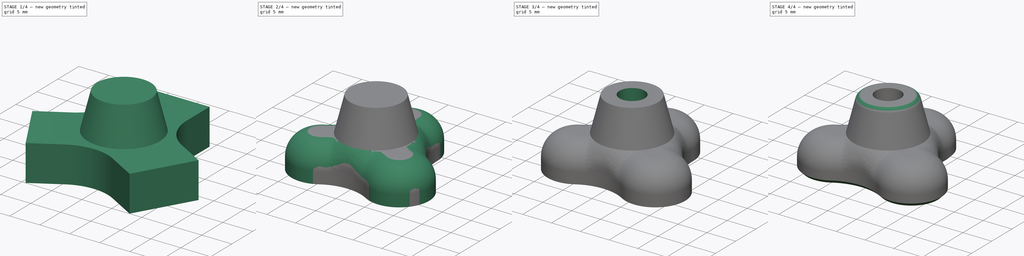
[diagram: build sequence overview — one tinted view per stage of 4, left to right]
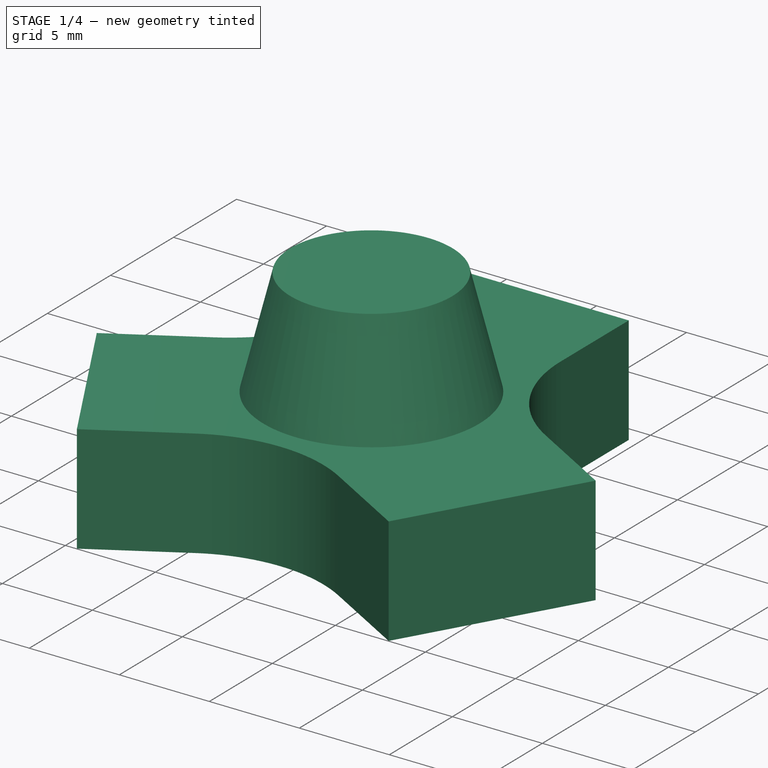
[diagram: stage 1 of 4 — iso view after this stage's code; geometry added in this stage tinted green]
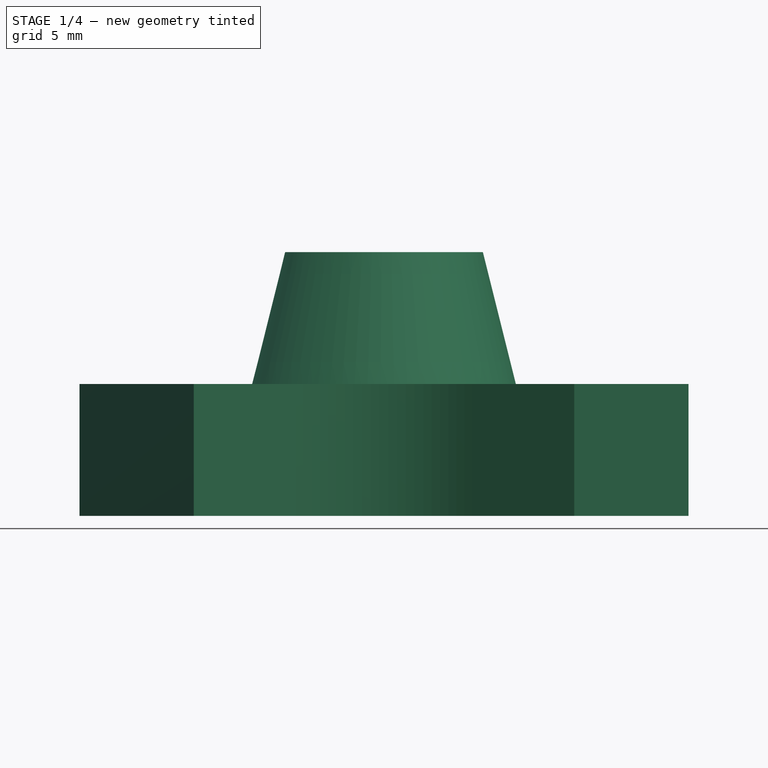
[diagram: stage 1 of 4 — front view after this stage's code; geometry added in this stage tinted green]
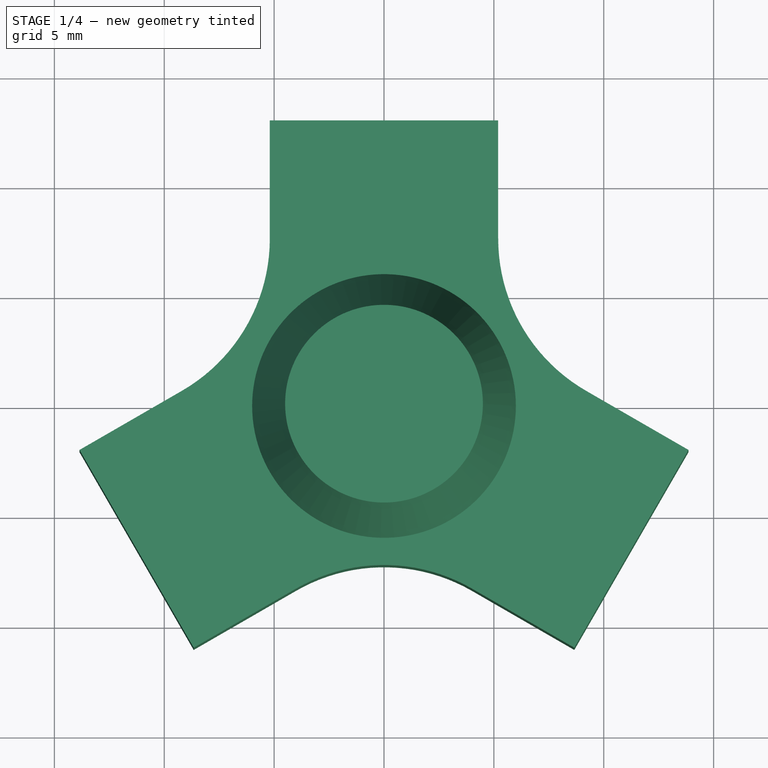
[diagram: stage 1 of 4 — top view after this stage's code; geometry added in this stage tinted green]
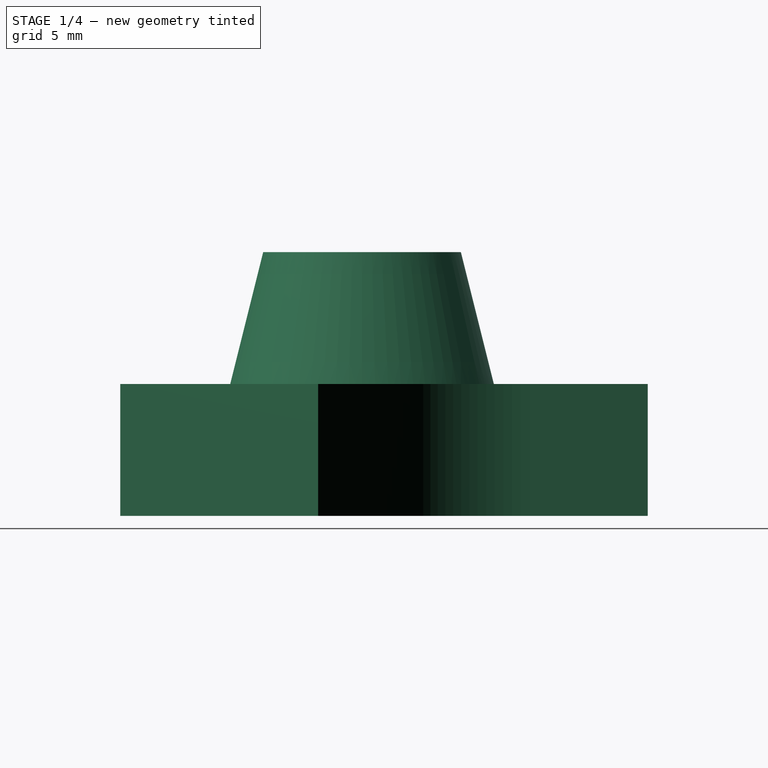
[diagram: stage 1 of 4 — right view after this stage's code; geometry added in this stage tinted green]
FCSTD DOCUMENT  (FreeCAD 0.15R4671 (Git))
Label: Verschraubungsknauf v2
License: All rights reserved
LicenseURL: http://de.wikipedia.org/wiki/Alle_Rechte_vorbehalten
objects: Sketcher::SketchObject×5, PartDesign::Fillet×4, PartDesign::Pad×2, PartDesign::Pocket×2, PartDesign::Chamfer×2, PartDesign::Revolution×1, Part::MultiFuse×1
note: 22 computed .brp shape members not serialized (recipe doc carries the construction recipe); baked Part::Feature solids carry a one-line shape summary decoded from their .brp

FEATURE [Sketcher::SketchObject] Sketch
  sketch-geometry (17):
    g0: LineSegment StartX=-5.19615 StartY=3 StartZ=0 EndX=-5.19615 EndY=13 EndZ=0
    g1: LineSegment StartX=-5.19615 StartY=13 StartZ=0 EndX=5.19615 EndY=13 EndZ=0
    g2: LineSegment StartX=5.19615 StartY=13 StartZ=0 EndX=5.19615 EndY=3 EndZ=0
    g3: LineSegment StartX=5.19615 StartY=3 StartZ=0 EndX=13.8564 EndY=-2 EndZ=0
    g4: LineSegment StartX=13.8564 StartY=-2 StartZ=0 EndX=8.66025 EndY=-11 EndZ=0
    g5: LineSegment StartX=8.66025 StartY=-11 StartZ=0 EndX=0 EndY=-6 EndZ=0
    g6: LineSegment StartX=0 StartY=-6 StartZ=0 EndX=-8.66025 EndY=-11 EndZ=0
    g7: LineSegment StartX=-8.66025 StartY=-11 StartZ=0 EndX=-13.8564 EndY=-2 EndZ=0
    g8: LineSegment StartX=-13.8564 StartY=-2 StartZ=0 EndX=-5.19615 EndY=3 EndZ=0
    g9: Circle [constr] CenterX=0 CenterY=0 CenterZ=0 NormalX=0 NormalY=0 NormalZ=1 Radius=6
    g10: LineSegment [constr] StartX=4.07032 StartY=0 StartZ=0 EndX=2.03516 EndY=3.525 EndZ=0
    g11: LineSegment [constr] StartX=2.03516 StartY=3.525 StartZ=0 EndX=-2.03516 EndY=3.525 EndZ=0
    g12: LineSegment [constr] StartX=-2.03516 StartY=3.525 StartZ=0 EndX=-4.07032 EndY=0 EndZ=0
    g13: LineSegment [constr] StartX=-4.07032 StartY=0 StartZ=0 EndX=-2.03516 EndY=-3.525 EndZ=0
    g14: LineSegment [constr] StartX=-2.03516 StartY=-3.525 StartZ=0 EndX=2.03516 EndY=-3.525 EndZ=0
    g15: LineSegment [constr] StartX=2.03516 StartY=-3.525 StartZ=0 EndX=4.07032 EndY=0 EndZ=0
    g16: Circle [constr] CenterX=0 CenterY=0 CenterZ=0 NormalX=0 NormalY=0 NormalZ=1 Radius=4.07032
  constraints (45):
    c: Vertical(g0)
    c: Coincident(g0,g1)
    c: Horizontal(g1)
    c: Coincident(g1,g2)
    c: Vertical(g2)
    c: Coincident(g2,g3)
    c: Coincident(g3,g4)
    c: Coincident(g4,g5)
    c: Coincident(g5,g6)
    c: Coincident(g6,g7)
    c: Coincident(g7,g8)
    c: Coincident(g8,g0)
    c: Coincident(g9,g-1)
    c: PointOnObject(g0,g9)
    c: PointOnObject(g2,g9)
    c: Equal(g1,g7)
    c: Equal(g7,g4)
    c: PointOnObject(g5,g9)
    c: PointOnObject(g5,g-2)
    c: Equal(g0,g2)
    c: Equal(g2,g3)
    c: Equal(g3,g5)
    c: Equal(g5,g6)
    c: Equal(g6,g8)
    c: Perpendicular(g7,g6)
    c: Perpendicular(g4,g5)
    c: Perpendicular(g8,g7)
    c: Coincident(g10,g11)
    c: Coincident(g11,g12)
    c: Coincident(g12,g13)
    c: Coincident(g13,g14)
    c: Coincident(g14,g15)
    c: Coincident(g15,g10)
    c: Equal(g10, g11-g15) x5
    c: PointOnObject(g10,g16)
    c: PointOnObject(g11,g16)
    c: PointOnObject(g12,g16)
    c: PointOnObject(g13,g16)
    c: PointOnObject(g14,g16)
    c: PointOnObject(g15,g16)
    c: Horizontal(g14)
    c: Distance(g11,g13) = 7.05
    c: Coincident(g9,g16)
    c: Radius(g9) = 6
    c: Distance(g5) = 10
FEATURE [PartDesign::Pad] Pad
  Length = 6
  Length2 = 100
  Sketch = -> Sketch
  Type = 0
FEATURE [Sketcher::SketchObject] Sketch004
  Placement = pos=(0,0,0) rot=(1,0,0;1.5708rad)
  sketch-geometry (5):
    g0: LineSegment StartX=4.5 StartY=12 StartZ=0 EndX=0 EndY=12 EndZ=0
    g1: LineSegment StartX=0 StartY=12 StartZ=0 EndX=0 EndY=6 EndZ=0
    g2: LineSegment StartX=0 StartY=6 StartZ=0 EndX=6 EndY=6 EndZ=0
    g3: ArcOfCircle [constr] CenterX=16.4985 CenterY=11.8121 CenterZ=0 NormalX=0 NormalY=0 NormalZ=1 Radius=12 StartAngle=3.12594 EndAngle=3.64721
    g4: LineSegment StartX=4.5 StartY=12 StartZ=0 EndX=6 EndY=6 EndZ=0
  constraints (15):
    c: Horizontal(g0)
    c: Coincident(g0,g1)
    c: Vertical(g1)
    c: Coincident(g1,g2)
    c: Horizontal(g2)
    c: Coincident(g3,g0)
    c: Coincident(g3,g2)
    c: PointOnObject(g1,g-2)
    c: DistanceY(g-1,g1) = 6
    c: DistanceX(g0) = -4.5
    c: DistanceX(g2) = 6
    c: DistanceY(g1) = -6
    c: Radius(g3) = 12
    c: Coincident(g4,g0)
    c: Coincident(g4,g2)
FEATURE [PartDesign::Revolution] Revolution
  Angle = 360
  Axis = (0,0,1)
  Base = (0,0,0)
  Placement = pos=(0,0,0) rot=(1,0,0;1.5708rad)
  ReferenceAxis = -> Sketch004 [V_Axis]
  Reversed = true
  Sketch = -> Sketch004
FEATURE [PartDesign::Fillet] Fillet
  Base = -> Pad [Edge1,Edge8,Edge17]
  Radius = 8
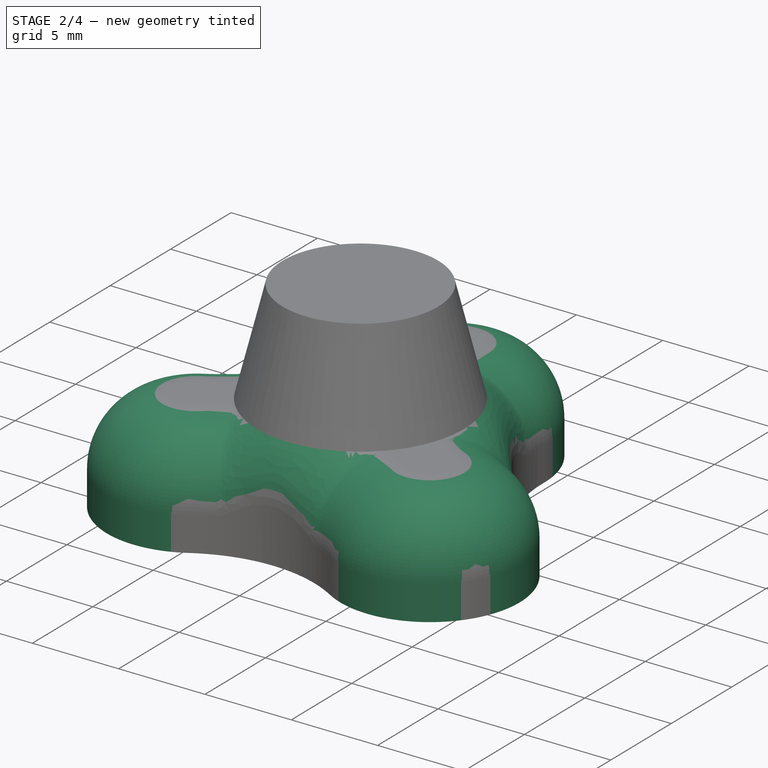
[diagram: stage 2 of 4 — iso view after this stage's code; geometry added in this stage tinted green]
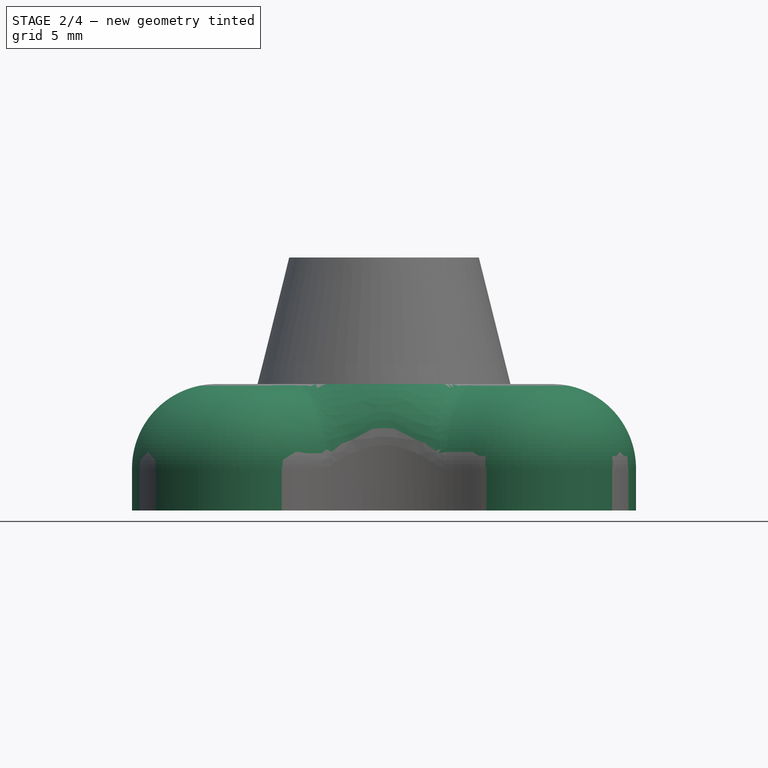
[diagram: stage 2 of 4 — front view after this stage's code; geometry added in this stage tinted green]
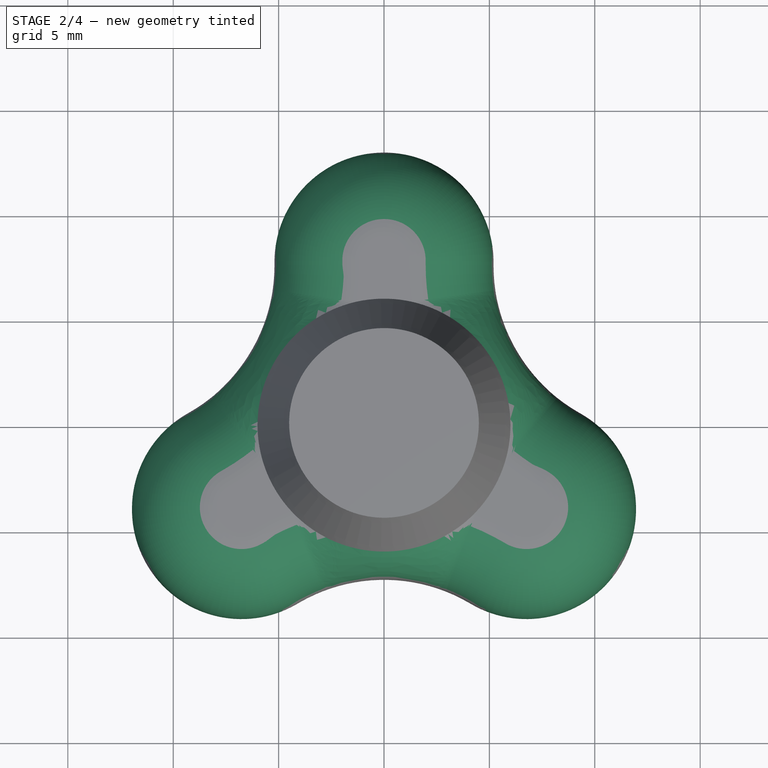
[diagram: stage 2 of 4 — top view after this stage's code; geometry added in this stage tinted green]
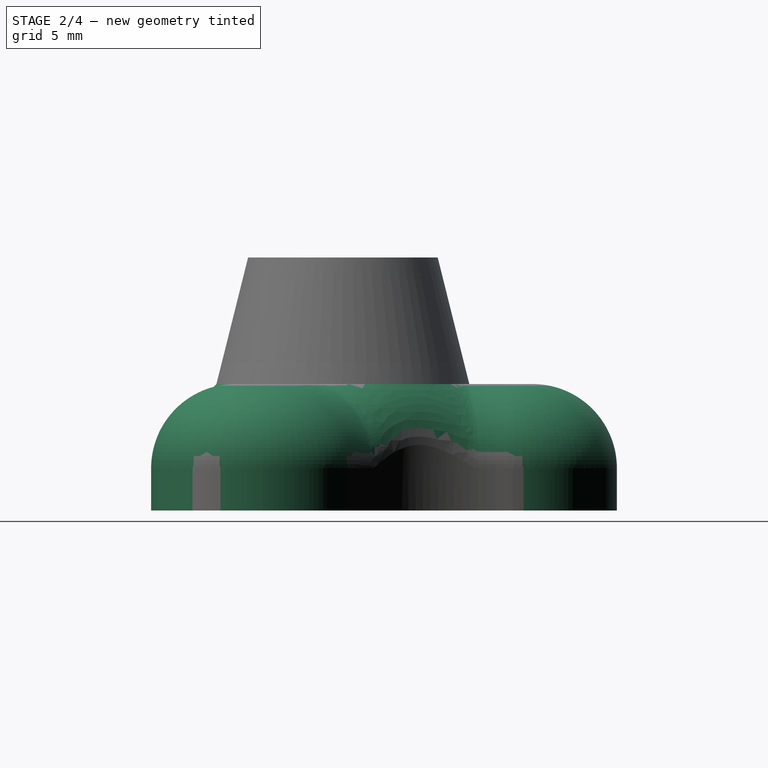
[diagram: stage 2 of 4 — right view after this stage's code; geometry added in this stage tinted green]
FEATURE [Part::MultiFuse] Fusion
  Shapes = -> [Fillet,Revolution]
FEATURE [PartDesign::Fillet] Fillet001
  Base = -> Fusion [Edge27,Edge24,Edge18,Edge21,Edge34,Edge37]
  Radius = 5.19
FEATURE [PartDesign::Fillet] Fillet002
  Base = -> Fillet001 [Edge10]
  Radius = 4
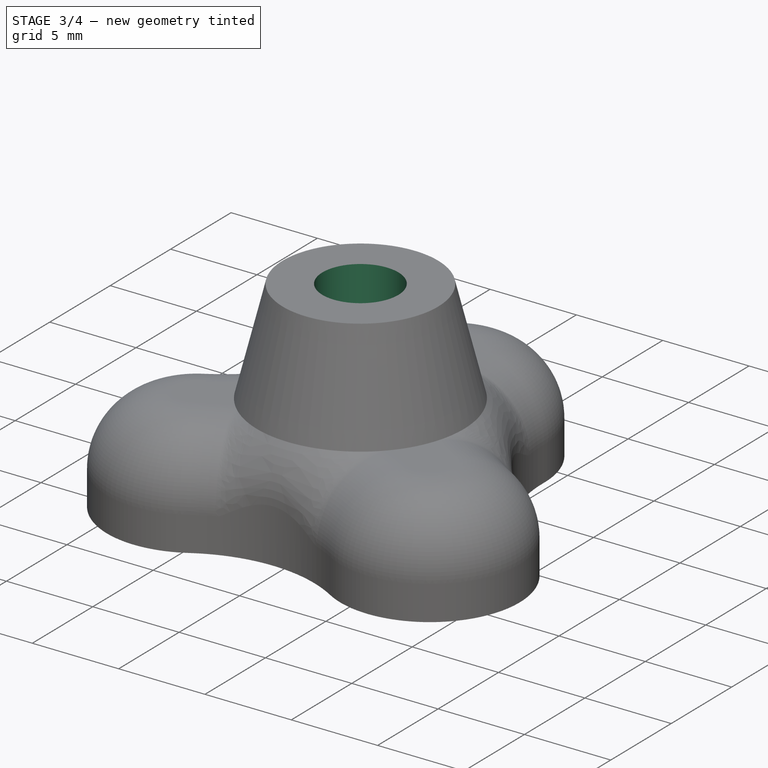
[diagram: stage 3 of 4 — iso view after this stage's code; geometry added in this stage tinted green]
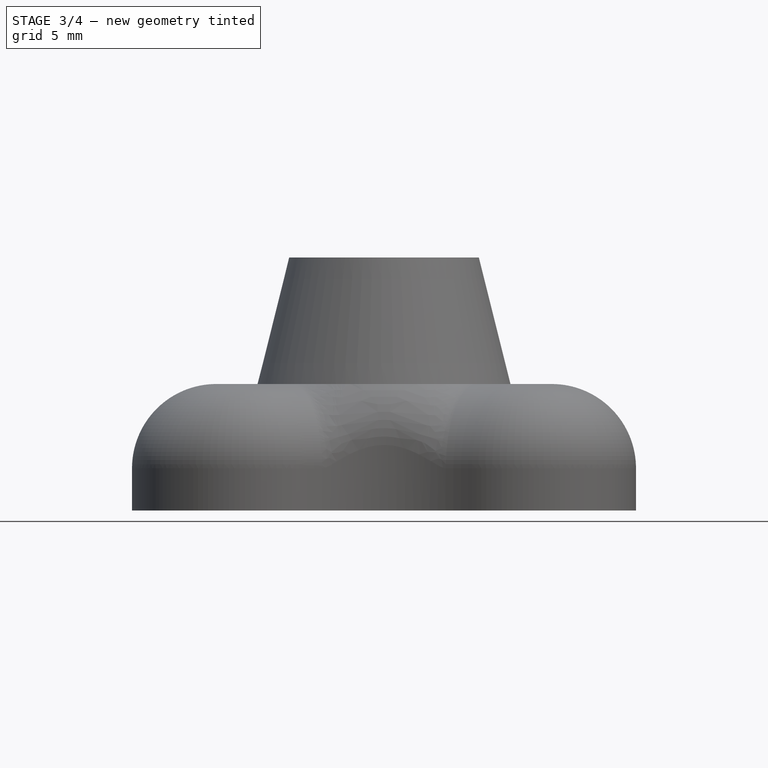
[diagram: stage 3 of 4 — front view after this stage's code; geometry added in this stage tinted green]
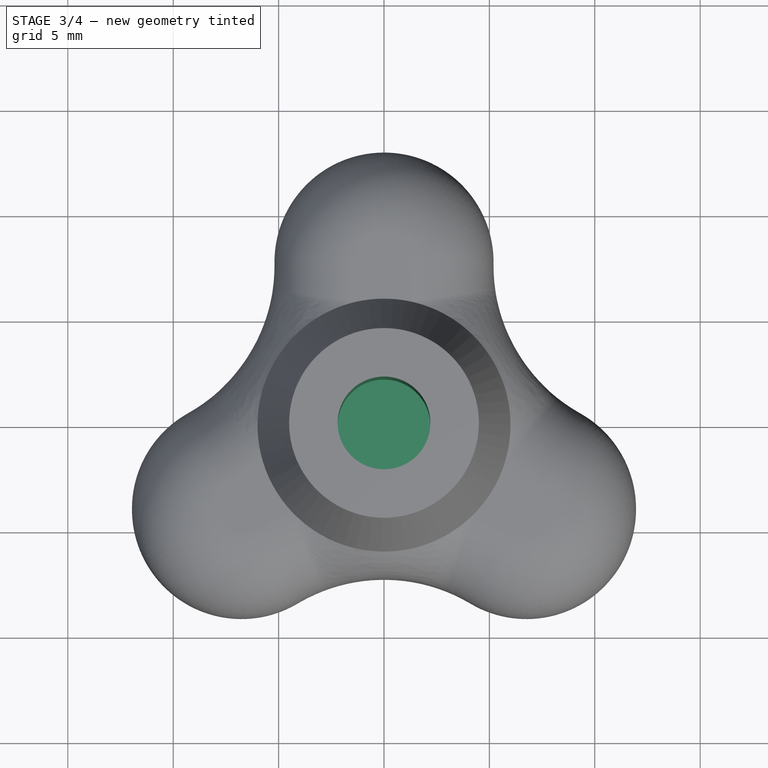
[diagram: stage 3 of 4 — top view after this stage's code; geometry added in this stage tinted green]
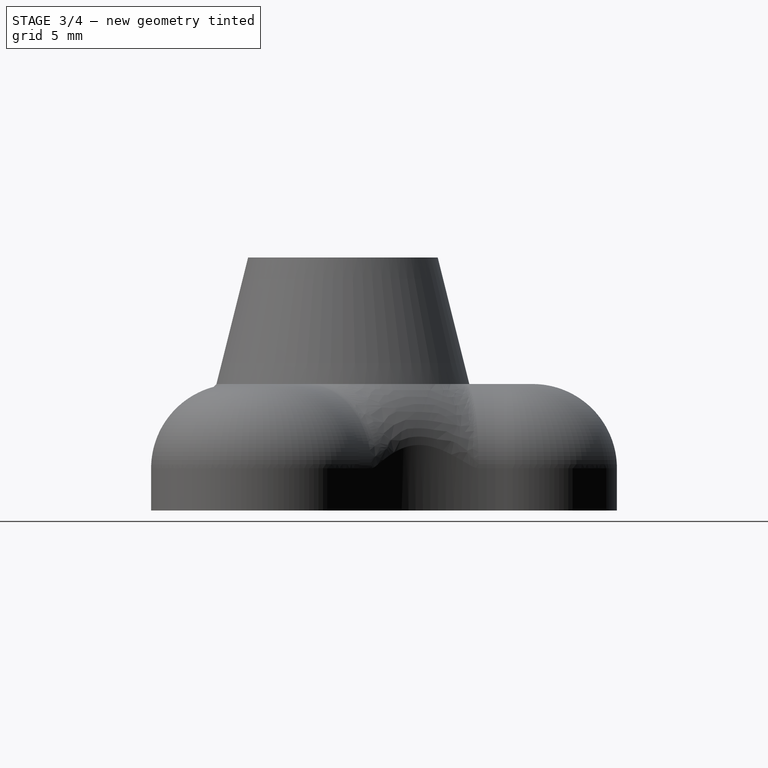
[diagram: stage 3 of 4 — right view after this stage's code; geometry added in this stage tinted green]
FEATURE [Sketcher::SketchObject] Sketch002
  Placement = pos=(0,0,12) rot=(0,0,1;0rad)
  Support = -> Fillet002 [Face13]
  sketch-geometry (1):
    g0: Circle CenterX=0 CenterY=0 CenterZ=0 NormalX=0 NormalY=0 NormalZ=1 Radius=2.2
  constraints (2):
    c: Coincident(g0,g-1)
    c: Radius(g0) = 2.2
FEATURE [PartDesign::Pocket] Pocket
  Length = 5
  Sketch = -> Sketch002
  Type = 1
FEATURE [Sketcher::SketchObject] Sketch003
  Placement = pos=(0,0,0) rot=(1,0,0;3.14159rad)
  Support = -> Pocket [Face41]
  sketch-geometry (7):
    g0: LineSegment StartX=4.07032 StartY=-5.2e-11 StartZ=0 EndX=2.03516 EndY=3.525 EndZ=0
    g1: LineSegment StartX=2.03516 StartY=3.525 StartZ=0 EndX=-2.03516 EndY=3.525 EndZ=0
    g2: LineSegment StartX=-2.03516 StartY=3.525 StartZ=0 EndX=-4.07032 EndY=-4e-11 EndZ=0
    g3: LineSegment StartX=-4.07032 StartY=-4e-11 StartZ=0 EndX=-2.03516 EndY=-3.525 EndZ=0
    g4: LineSegment StartX=-2.03516 StartY=-3.525 StartZ=0 EndX=2.03516 EndY=-3.525 EndZ=0
    g5: LineSegment StartX=2.03516 StartY=-3.525 StartZ=0 EndX=4.07032 EndY=-5.2e-11 EndZ=0
    g6: Circle [constr] CenterX=0 CenterY=0 CenterZ=0 NormalX=0 NormalY=0 NormalZ=1 Radius=4.07032
  constraints (17):
    c: Coincident(g0,g1)
    c: Coincident(g1,g2)
    c: Coincident(g2,g3)
    c: Coincident(g3,g4)
    c: Coincident(g4,g5)
    c: Coincident(g5,g0)
    c: Equal(g0, g1-g5) x5
    c: PointOnObject(g0,g6)
    c: PointOnObject(g1,g6)
    c: PointOnObject(g2,g6)
    c: PointOnObject(g3,g6)
    c: PointOnObject(g4,g6)
    c: PointOnObject(g5,g6)
    c: Coincident(g3,g-1)
    c: Horizontal(g4)
    c: Coincident(g6,g-1)
    c: Distance(g4,g0) = 7.05
FEATURE [PartDesign::Pocket] Pocket001
  Length = 3.3
  Sketch = -> Sketch003
  Type = 0
FEATURE [Sketcher::SketchObject] Sketch005
  ExternalGeometry = -> [Pocket001]
  Placement = pos=(0,0,3.3) rot=(1,0,0;3.14159rad)
  Support = -> Pocket001 [Face47]
  sketch-geometry (1):
    g0: Circle CenterX=0 CenterY=0 CenterZ=0 NormalX=0 NormalY=0 NormalZ=1 Radius=2.2
  constraints (2):
    c: Coincident(g0,g-1)
    c: Equal(g-3,g0)
FEATURE [PartDesign::Pad] Pad001
  Length = 0.3
  Length2 = 100
  Reversed = true
  Sketch = -> Sketch005
  Type = 0
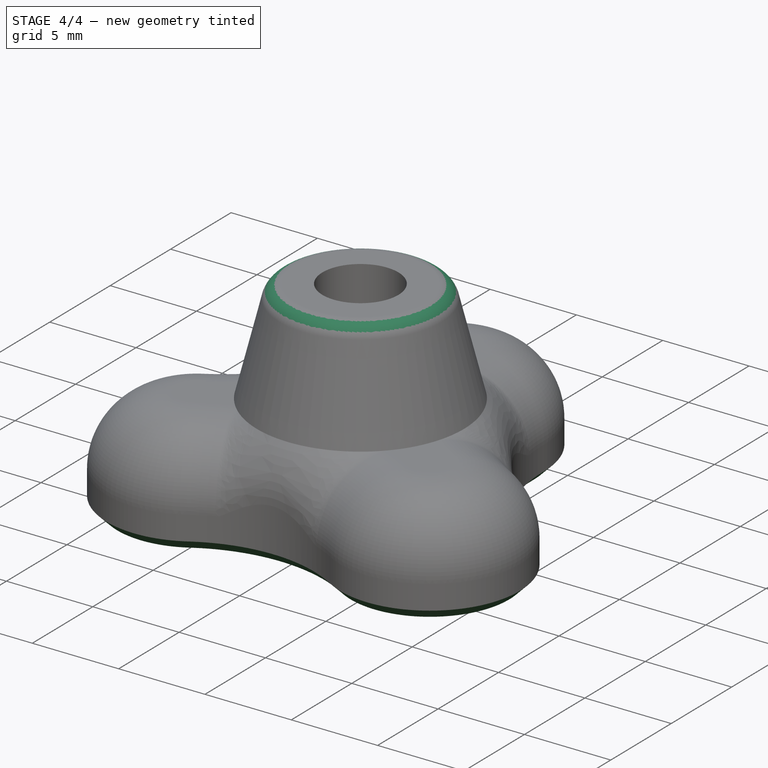
[diagram: stage 4 of 4 — iso view after this stage's code; geometry added in this stage tinted green]
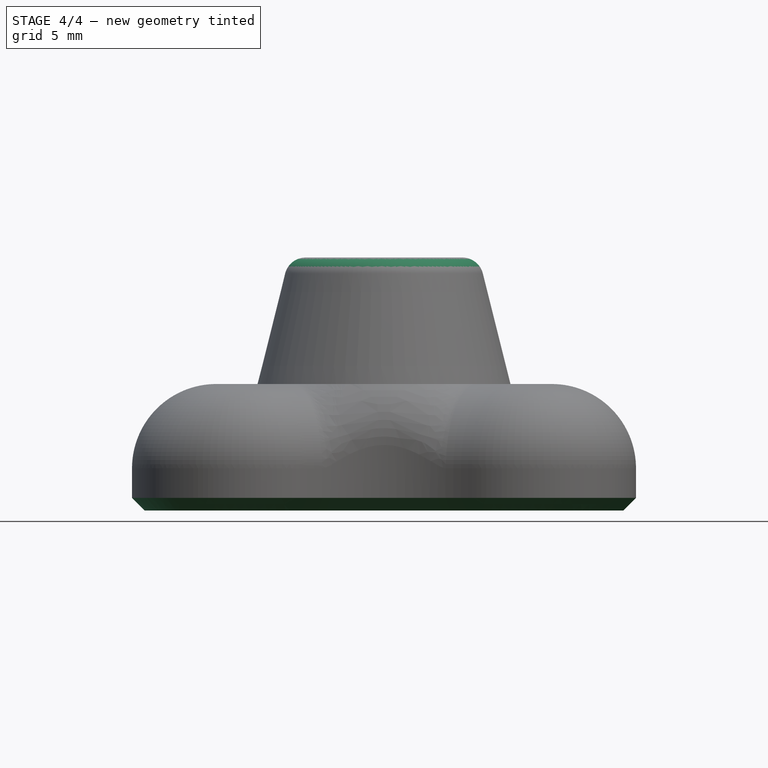
[diagram: stage 4 of 4 — front view after this stage's code; geometry added in this stage tinted green]
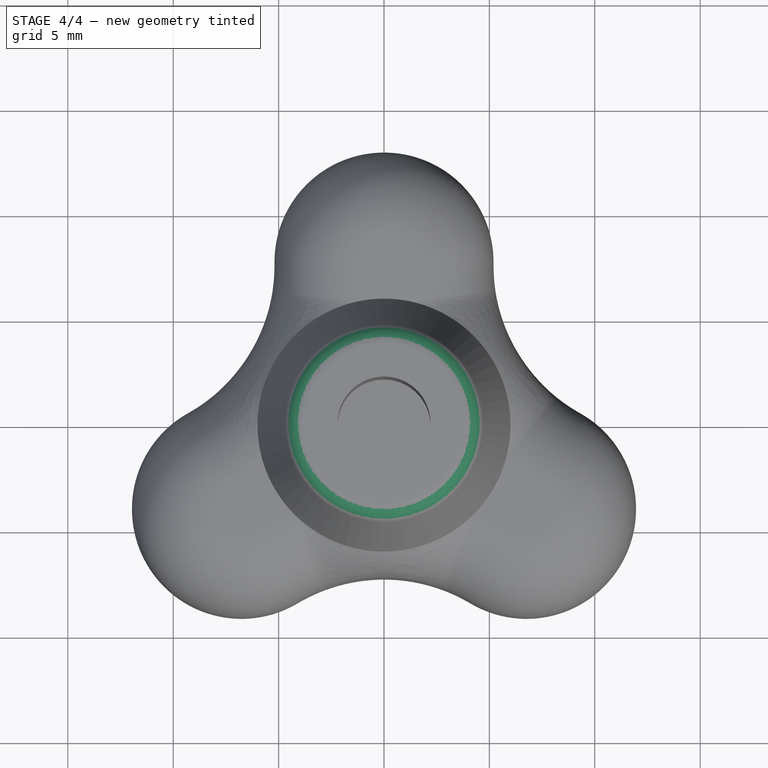
[diagram: stage 4 of 4 — top view after this stage's code; geometry added in this stage tinted green]
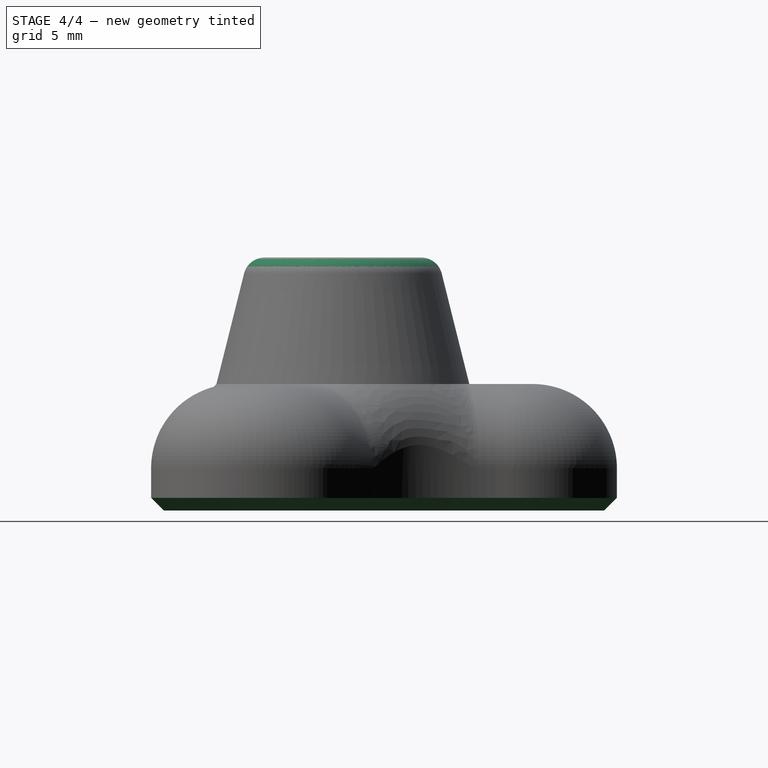
[diagram: stage 4 of 4 — right view after this stage's code; geometry added in this stage tinted green]
FEATURE [PartDesign::Fillet] Fillet003
  Base = -> Pad001 [Edge13]
  Radius = 1
FEATURE [PartDesign::Chamfer] Chamfer
  Base = -> Fillet003 [Edge91]
  Size = 0.6
FEATURE [PartDesign::Chamfer] Chamfer001
  Base = -> Chamfer [Edge53,Edge54,Edge55,Edge50,Edge51,Edge52]
  Size = 0.6
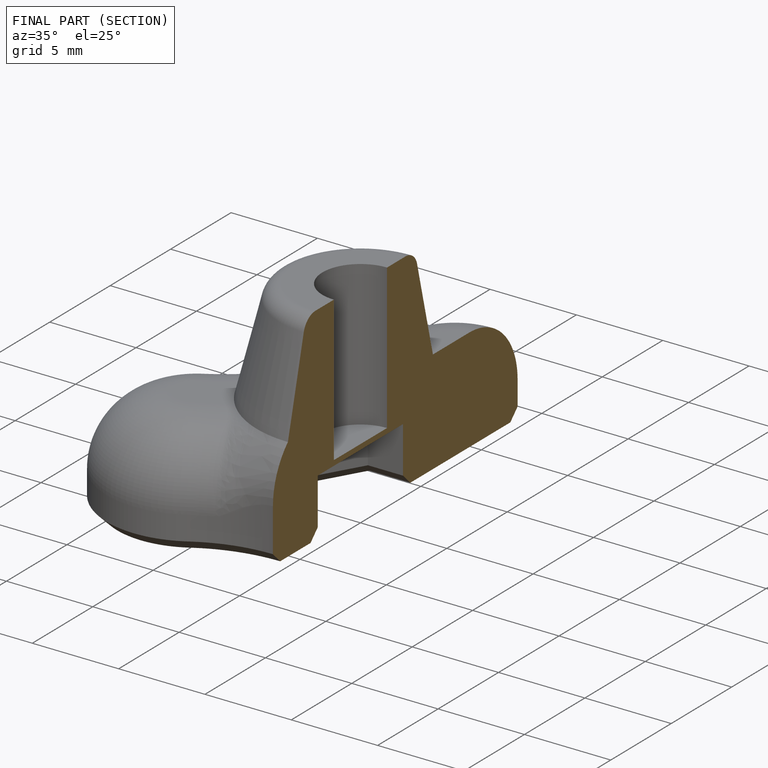
[diagram: finished part — half-section view (interior)]
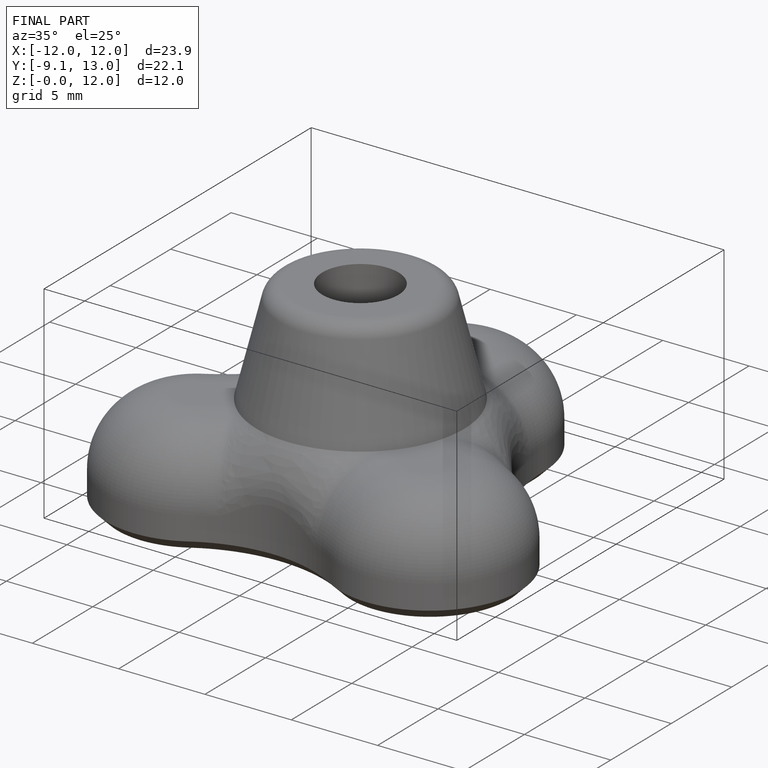
[diagram: finished part — iso view with bounding-box wireframe]
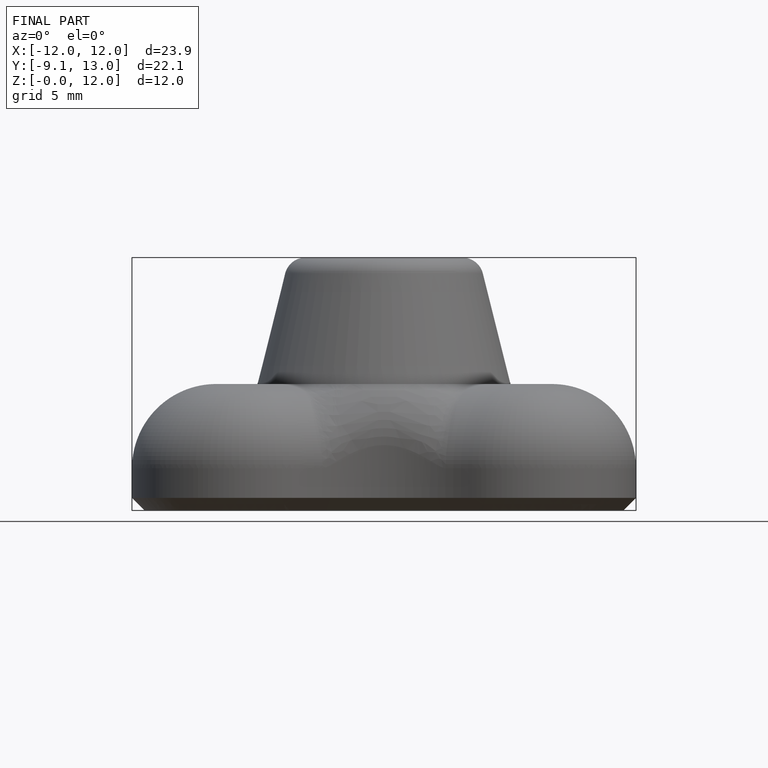
[diagram: finished part — front view with bounding-box wireframe]
